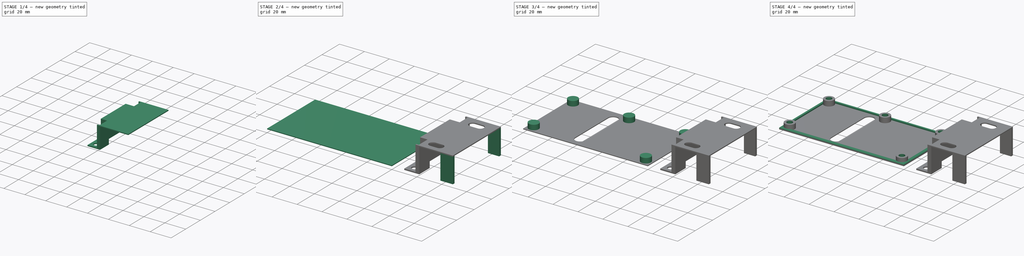
[diagram: build sequence overview — one tinted view per stage of 4, left to right]
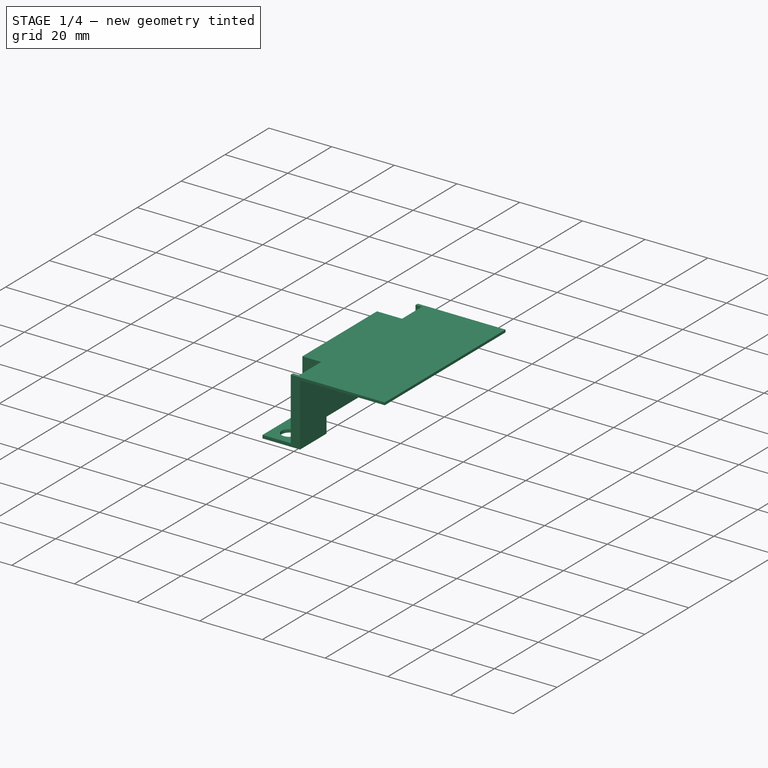
[diagram: stage 1 of 4 — iso view after this stage's code; geometry added in this stage tinted green]
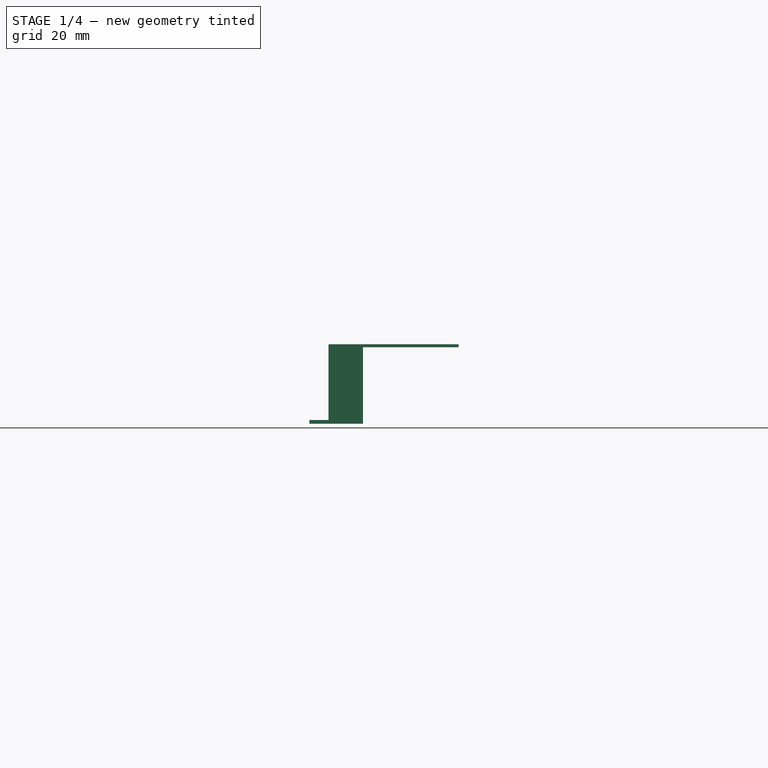
[diagram: stage 1 of 4 — front view after this stage's code; geometry added in this stage tinted green]
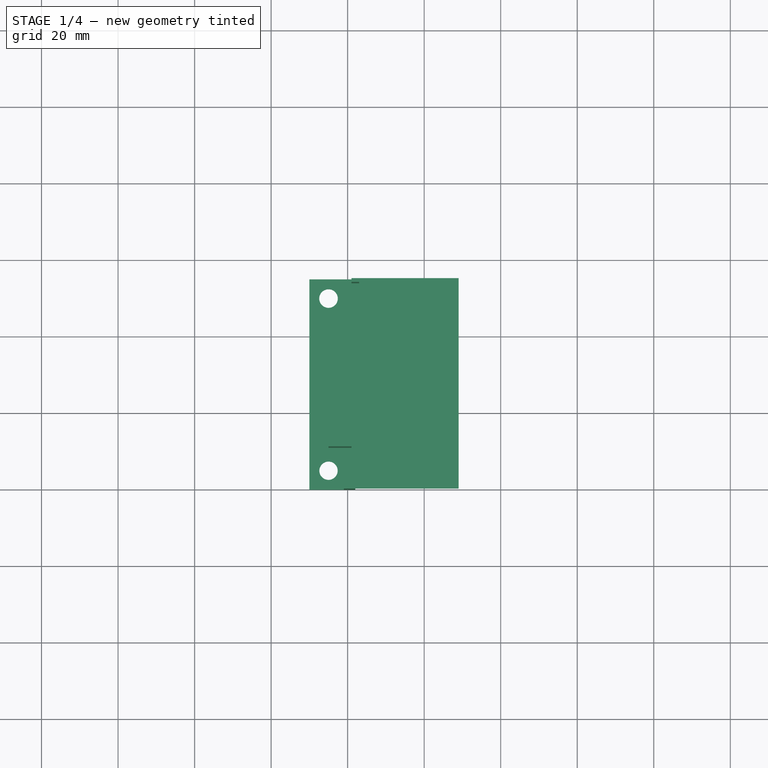
[diagram: stage 1 of 4 — top view after this stage's code; geometry added in this stage tinted green]
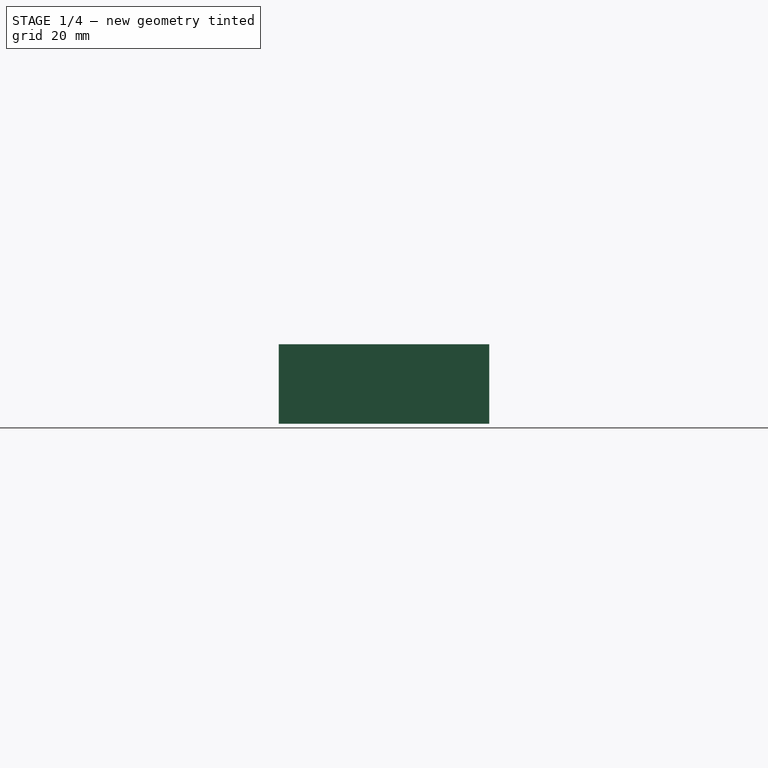
[diagram: stage 1 of 4 — right view after this stage's code; geometry added in this stage tinted green]
FCSTD DOCUMENT  (FreeCAD 0.18R4 (GitTag))
Label: HV Insulation
License: All rights reserved
LicenseURL: http://en.wikipedia.org/wiki/All_rights_reserved
objects: Sketcher::SketchObject×10, PartDesign::Pad×7, PartDesign::Pocket×2, PartDesign::Body×2, PartDesign::Fillet×1, PartDesign::Hole×1
note: 33 computed .brp shape members not serialized (recipe doc carries the construction recipe); baked Part::Feature solids carry a one-line shape summary decoded from their .brp

FEATURE [PartDesign::Body] Body  label="Insulator"
  Group = -> [Sketch,Pad,Sketch001,Pad001,Sketch002,Pocket,Sketch003,Pad002,Fillet,Sketch004,Hole]
  Origin = -> Origin
  Tip = -> Hole
FEATURE [Sketcher::SketchObject] Sketch005
  MapMode = 5
  Support = -> [XY_Plane001]
  sketch-geometry (10):
    g0: LineSegment StartX=110 StartY=55 StartZ=0 EndX=110 EndY=0 EndZ=0
    g1: LineSegment StartX=110 StartY=0 StartZ=0 EndX=122 EndY=0 EndZ=0
    g2: LineSegment StartX=122 StartY=0 StartZ=0 EndX=122 EndY=12 EndZ=0
    g3: LineSegment StartX=122 StartY=12 StartZ=0 EndX=116 EndY=12 EndZ=0
    g4: LineSegment StartX=116 StartY=12 StartZ=0 EndX=116 EndY=44 EndZ=0
    g5: LineSegment StartX=116 StartY=44 StartZ=0 EndX=124 EndY=44 EndZ=0
    g6: LineSegment StartX=110 StartY=55 StartZ=0 EndX=124 EndY=55 EndZ=0
    g7: LineSegment StartX=124 StartY=55 StartZ=0 EndX=124 EndY=44 EndZ=0
    g8: Circle CenterX=115 CenterY=50 CenterZ=0 NormalX=0 NormalY=0 NormalZ=1 AngleXU=0 Radius=2.42766
    g9: Circle CenterX=115 CenterY=5 CenterZ=0 NormalX=0 NormalY=0 NormalZ=1 AngleXU=0 Radius=2.39307
  constraints (17):
    c: PointOnObject(g0,g-1)
    c: Vertical(g0)
    c: Coincident(g0,g1)
    c: PointOnObject(g1,g-1)
    c: Coincident(g1,g2)
    c: Vertical(g2)
    c: Coincident(g2,g3)
    c: Horizontal(g3)
    c: Coincident(g3,g4)
    c: Vertical(g4)
    c: Coincident(g4,g5)
    c: Horizontal(g5)
    c: Coincident(g0,g6)
    c: Horizontal(g6)
    c: Coincident(g7,g6)
    c: Coincident(g7,g5)
    c: Vertical(g7)
FEATURE [PartDesign::Pad] Pad003
  Length = 1
  Length2 = 100
  Profile = -> Sketch005
  Type = 0
FEATURE [Sketcher::SketchObject] Sketch006
  MapMode = 5
  Placement = pos=(0,0,1) rot=(0,0,1;0rad)
  Support = -> [Pad003]
  sketch-geometry (16):
    g0: LineSegment StartX=121 StartY=55 StartZ=0 EndX=121 EndY=54 EndZ=0
    g1: LineSegment StartX=121 StartY=54 StartZ=0 EndX=123 EndY=54 EndZ=0
    g2: LineSegment StartX=123 StartY=54 StartZ=0 EndX=123 EndY=45 EndZ=0
    g3: LineSegment StartX=123 StartY=45 StartZ=0 EndX=115 EndY=45 EndZ=0
    g4: LineSegment StartX=115 StartY=45 StartZ=0 EndX=115 EndY=11 EndZ=0
    g5: LineSegment StartX=115 StartY=11 StartZ=0 EndX=121 EndY=11 EndZ=0
    g6: LineSegment StartX=121 StartY=11 StartZ=0 EndX=121 EndY=1 EndZ=0
    g7: LineSegment StartX=121 StartY=1 StartZ=0 EndX=119 EndY=1 EndZ=0
    g8: LineSegment StartX=119 StartY=1 StartZ=0 EndX=119 EndY=0 EndZ=0
    g9: LineSegment StartX=119 StartY=0 StartZ=0 EndX=122 EndY=0 EndZ=0
    g10: LineSegment StartX=122 StartY=0 StartZ=0 EndX=122 EndY=12 EndZ=0
    g11: LineSegment StartX=122 StartY=12 StartZ=0 EndX=116 EndY=12 EndZ=0
    g12: LineSegment StartX=116 StartY=12 StartZ=0 EndX=116 EndY=44 EndZ=0
    g13: LineSegment StartX=116 StartY=44 StartZ=0 EndX=124 EndY=44 EndZ=0
    g14: LineSegment StartX=124 StartY=44 StartZ=0 EndX=124 EndY=55 EndZ=0
    g15: LineSegment StartX=124 StartY=55 StartZ=0 EndX=121 EndY=55 EndZ=0
  constraints (32):
    c: Vertical(g0)
    c: Coincident(g0,g1)
    c: Horizontal(g1)
    c: Coincident(g1,g2)
    c: Vertical(g2)
    c: Coincident(g2,g3)
    c: Horizontal(g3)
    c: Coincident(g3,g4)
    c: Vertical(g4)
    c: Coincident(g4,g5)
    c: Horizontal(g5)
    c: Coincident(g5,g6)
    c: Vertical(g6)
    c: Coincident(g6,g7)
    c: Horizontal(g7)
    c: Coincident(g7,g8)
    c: Vertical(g8)
    c: Coincident(g8,g9)
    c: Horizontal(g9)
    c: Coincident(g9,g10)
    c: Vertical(g10)
    c: Coincident(g10,g11)
    c: Horizontal(g11)
    c: Coincident(g11,g12)
    c: Vertical(g12)
    c: Coincident(g12,g13)
    c: Horizontal(g13)
    c: Coincident(g13,g14)
    c: Vertical(g14)
    c: Coincident(g14,g15)
    c: Coincident(g15,g0)
    c: Horizontal(g15)
FEATURE [PartDesign::Pad] Pad004
  BaseFeature = -> Pad003
  Length = 19
  Length2 = 100
  Profile = -> Sketch006
  Type = 0
FEATURE [Sketcher::SketchObject] Sketch007
  MapMode = 5
  Placement = pos=(0,0,20) rot=(0,0,1;0rad)
  Support = -> [Pad004]
  sketch-geometry (12):
    g0: LineSegment StartX=121 StartY=55 StartZ=0 EndX=121 EndY=54 EndZ=0
    g1: LineSegment StartX=121 StartY=54 StartZ=0 EndX=123 EndY=54 EndZ=0
    g2: LineSegment StartX=123 StartY=54 StartZ=0 EndX=123 EndY=45 EndZ=0
    g3: LineSegment StartX=123 StartY=45 StartZ=0 EndX=115 EndY=45 EndZ=0
    g4: LineSegment StartX=115 StartY=45 StartZ=0 EndX=115 EndY=11 EndZ=0
    g5: LineSegment StartX=115 StartY=11 StartZ=0 EndX=121 EndY=11 EndZ=0
    g6: LineSegment StartX=121 StartY=11 StartZ=0 EndX=121 EndY=1 EndZ=0
    g7: LineSegment StartX=121 StartY=1 StartZ=0 EndX=119 EndY=1 EndZ=0
    g8: LineSegment StartX=119 StartY=1 StartZ=0 EndX=119 EndY=0 EndZ=0
    g9: LineSegment StartX=119 StartY=0 StartZ=0 EndX=149 EndY=0 EndZ=0
    g10: LineSegment StartX=149 StartY=0 StartZ=0 EndX=149 EndY=55 EndZ=0
    g11: LineSegment StartX=149 StartY=55 StartZ=0 EndX=121 EndY=55 EndZ=0
  constraints (25):
    c: Vertical(g0)
    c: Coincident(g0,g1)
    c: Horizontal(g1)
    c: Coincident(g1,g2)
    c: Vertical(g2)
    c: Coincident(g2,g3)
    c: Horizontal(g3)
    c: Coincident(g3,g4)
    c: Vertical(g4)
    c: Coincident(g4,g5)
    c: Horizontal(g5)
    c: Coincident(g5,g6)
    c: Vertical(g6)
    c: Coincident(g6,g7)
    c: Horizontal(g7)
    c: Coincident(g7,g8)
    c: PointOnObject(g8,g-1)
    c: Vertical(g8)
    c: Coincident(g8,g9)
    c: Horizontal(g9)
    c: Coincident(g9,g10)
    c: Vertical(g10)
    c: Coincident(g10,g11)
    c: Coincident(g11,g0)
    c: Horizontal(g11)
FEATURE [PartDesign::Pad] Pad005
  BaseFeature = -> Pad004
  Length = 0.8
  Length2 = 100
  Profile = -> Sketch007
  Type = 0
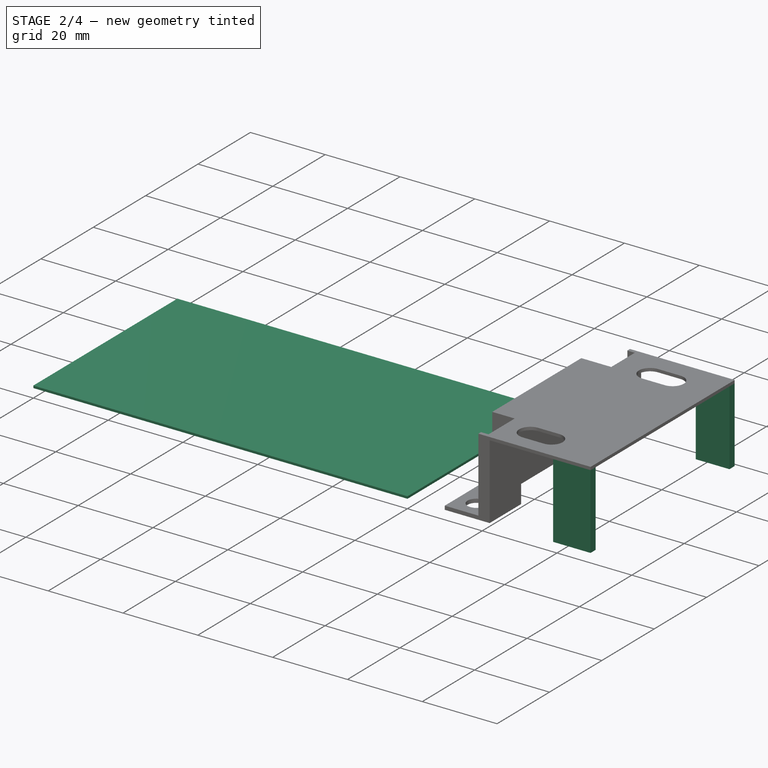
[diagram: stage 2 of 4 — iso view after this stage's code; geometry added in this stage tinted green]
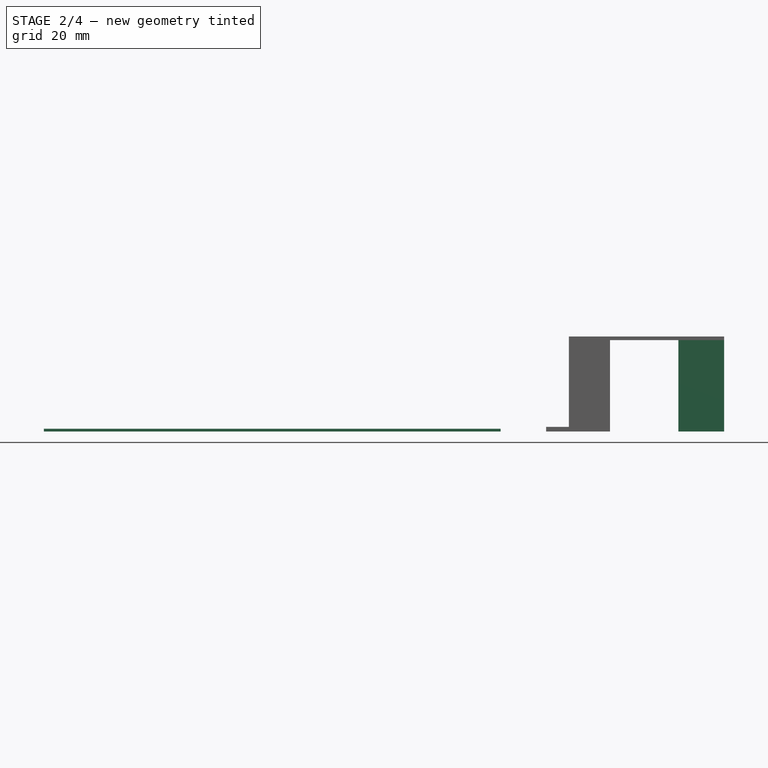
[diagram: stage 2 of 4 — front view after this stage's code; geometry added in this stage tinted green]
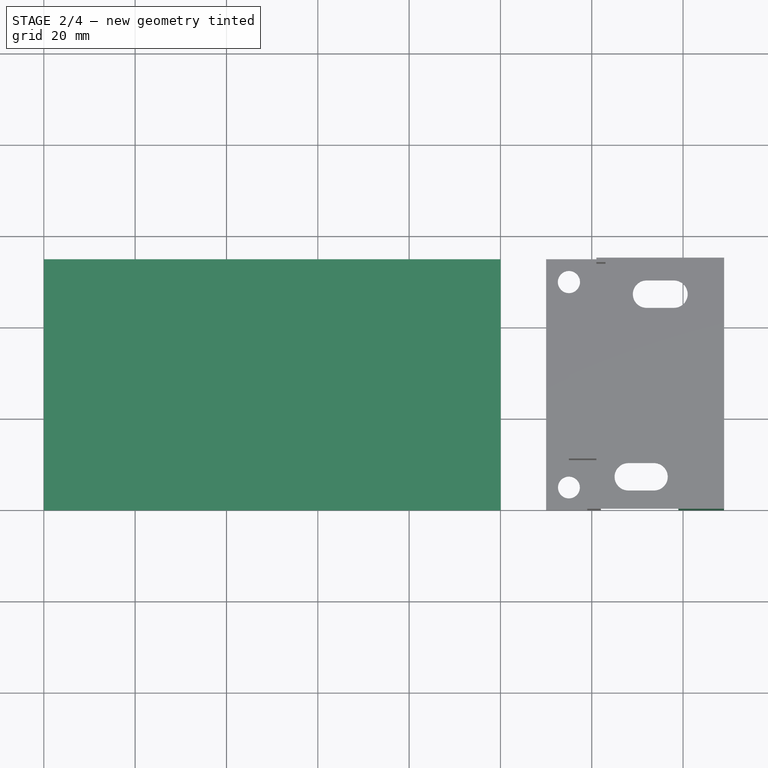
[diagram: stage 2 of 4 — top view after this stage's code; geometry added in this stage tinted green]
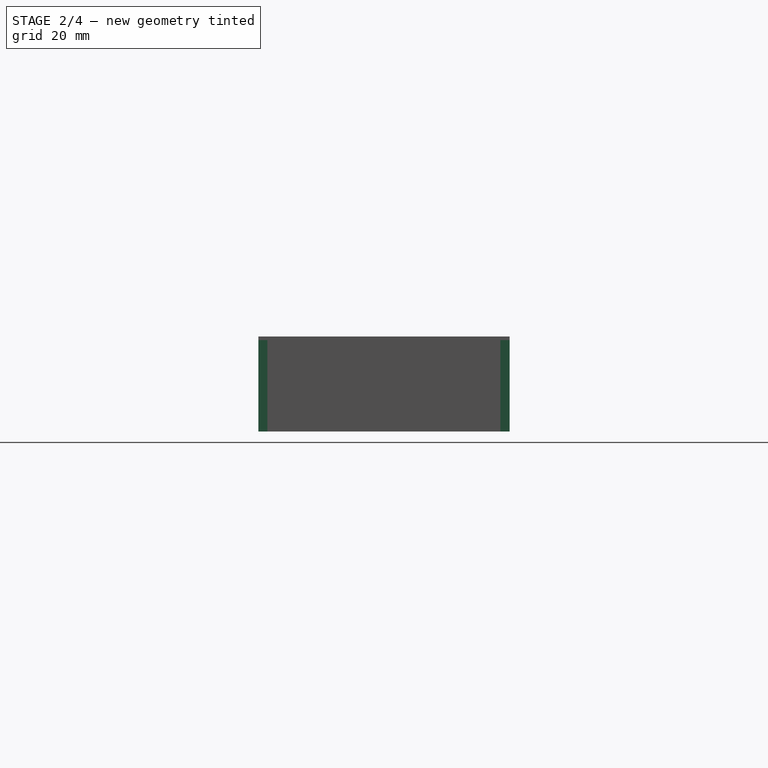
[diagram: stage 2 of 4 — right view after this stage's code; geometry added in this stage tinted green]
FEATURE [Sketcher::SketchObject] Sketch
  MapMode = 5
  Support = -> [XY_Plane]
  sketch-geometry (4):
    g0: LineSegment StartX=0 StartY=0 StartZ=0 EndX=100.042 EndY=0 EndZ=0
    g1: LineSegment StartX=100.042 StartY=0 StartZ=0 EndX=100.042 EndY=55 EndZ=0
    g2: LineSegment StartX=100.042 StartY=55 StartZ=0 EndX=0 EndY=55 EndZ=0
    g3: LineSegment StartX=0 StartY=55 StartZ=0 EndX=0 EndY=0 EndZ=0
  constraints (9):
    c: Coincident(g0,g1)
    c: Coincident(g1,g2)
    c: Coincident(g2,g3)
    c: Coincident(g3,g0)
    c: Horizontal(g0)
    c: Horizontal(g2)
    c: Vertical(g1)
    c: Vertical(g3)
    c: Coincident(g0,g-1)
FEATURE [PartDesign::Pad] Pad
  Length = 0.6
  Length2 = 100
  Profile = -> Sketch
  Type = 0
FEATURE [Sketcher::SketchObject] Sketch008
  MapMode = 5
  Placement = pos=(0,0,20) rot=(1,0,0;3.14159rad)
  Support = -> [Pad005]
  sketch-geometry (8):
    g0: LineSegment StartX=138.972 StartY=0 StartZ=0 EndX=148.972 EndY=0 EndZ=0
    g1: LineSegment StartX=148.972 StartY=0 StartZ=0 EndX=148.972 EndY=-1.95523 EndZ=0
    g2: LineSegment StartX=148.972 StartY=-1.95523 StartZ=0 EndX=138.972 EndY=-1.95523 EndZ=0
    g3: LineSegment StartX=138.972 StartY=-1.95523 StartZ=0 EndX=138.972 EndY=0 EndZ=0
    g4: LineSegment StartX=149 StartY=-55 StartZ=0 EndX=140 EndY=-55 EndZ=0
    g5: LineSegment StartX=140 StartY=-55 StartZ=0 EndX=140 EndY=-53 EndZ=0
    g6: LineSegment StartX=140 StartY=-53 StartZ=0 EndX=149 EndY=-53 EndZ=0
    g7: LineSegment StartX=149 StartY=-53 StartZ=0 EndX=149 EndY=-55 EndZ=0
  constraints (17):
    c: Coincident(g0,g1)
    c: Coincident(g1,g2)
    c: Coincident(g2,g3)
    c: Coincident(g3,g0)
    c: Horizontal(g0)
    c: Horizontal(g2)
    c: Vertical(g1)
    c: Vertical(g3)
    c: PointOnObject(g0,g-1)
    c: Coincident(g4,g5)
    c: Coincident(g5,g6)
    c: Coincident(g6,g7)
    c: Coincident(g7,g4)
    c: Horizontal(g4)
    c: Horizontal(g6)
    c: Vertical(g5)
    c: Vertical(g7)
FEATURE [PartDesign::Pad] Pad006
  BaseFeature = -> Pad005
  Length = 20
  Length2 = 100
  Profile = -> Sketch008
  Type = 0
FEATURE [Sketcher::SketchObject] Sketch009
  MapMode = 5
  Placement = pos=(0,0,20.8) rot=(0,0,1;0rad)
  Support = -> [Pad006]
  sketch-geometry (8):
    g0: ArcOfCircle CenterX=132 CenterY=47 CenterZ=0 NormalX=0 NormalY=0 NormalZ=1 AngleXU=0 Radius=3 StartAngle=1.5708 EndAngle=4.71239
    g1: ArcOfCircle CenterX=138 CenterY=47 CenterZ=0 NormalX=0 NormalY=0 NormalZ=1 AngleXU=0 Radius=3 StartAngle=4.71239 EndAngle=7.85398
    g2: LineSegment StartX=132 StartY=44 StartZ=0 EndX=138 EndY=44 EndZ=0
    g3: LineSegment StartX=132 StartY=50 StartZ=0 EndX=138 EndY=50 EndZ=0
    g4: ArcOfCircle CenterX=128 CenterY=7 CenterZ=0 NormalX=0 NormalY=0 NormalZ=1 AngleXU=0 Radius=3 StartAngle=1.5708 EndAngle=4.71239
    g5: ArcOfCircle CenterX=133.637 CenterY=7 CenterZ=0 NormalX=0 NormalY=0 NormalZ=1 AngleXU=0 Radius=3 StartAngle=4.71239 EndAngle=7.85398
    g6: LineSegment StartX=128 StartY=4 StartZ=0 EndX=133.637 EndY=4 EndZ=0
    g7: LineSegment StartX=128 StartY=10 StartZ=0 EndX=133.637 EndY=10 EndZ=0
  constraints (12):
    c: Tangent(g0,g3) = 1.5708
    c: Tangent(g0,g2) = -1.5708
    c: Tangent(g2,g1) = -1.5708
    c: Tangent(g3,g1) = 1.5708
    c: Horizontal(g2)
    c: Equal(g0,g1)
    c: Tangent(g4,g7) = 1.5708
    c: Tangent(g4,g6) = -1.5708
    c: Tangent(g6,g5) = -1.5708
    c: Tangent(g7,g5) = 1.5708
    c: Horizontal(g6)
    c: Equal(g4,g5)
FEATURE [PartDesign::Pocket] Pocket001
  BaseFeature = -> Pad006
  Length = 5
  Length2 = 100
  Profile = -> Sketch009
  Type = 0
FEATURE [PartDesign::Body] Body001
  Group = -> [Sketch005,Pad003,Sketch006,Pad004,Sketch007,Pad005,Sketch008,Pad006,Sketch009,Pocket001]
  Origin = -> Origin001
  Tip = -> Pocket001
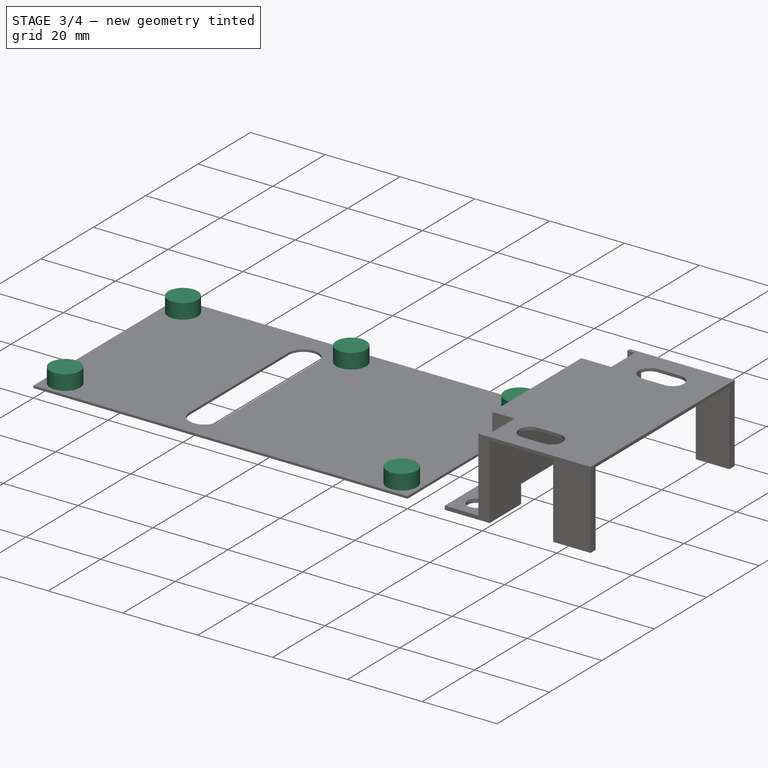
[diagram: stage 3 of 4 — iso view after this stage's code; geometry added in this stage tinted green]
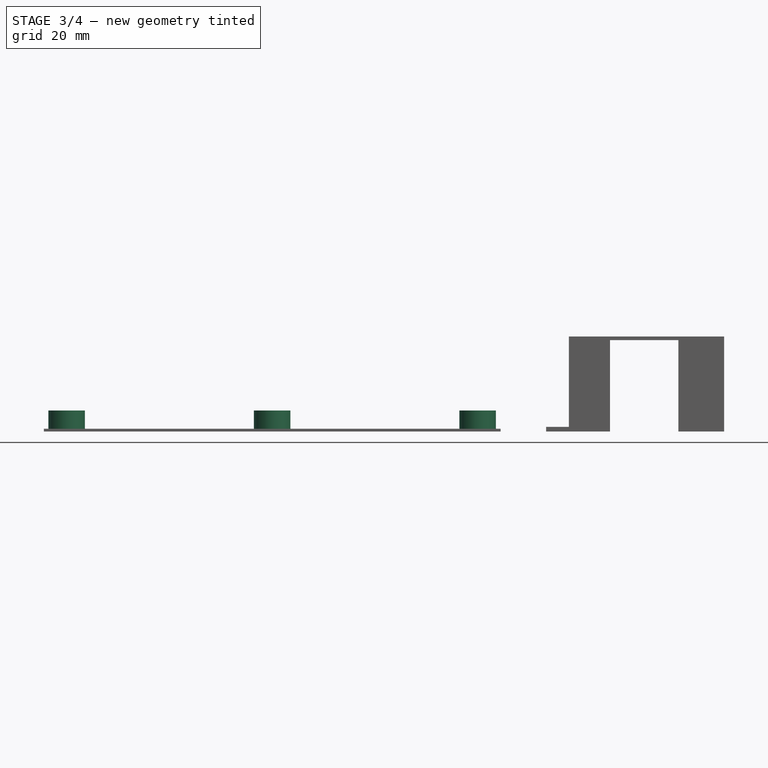
[diagram: stage 3 of 4 — front view after this stage's code; geometry added in this stage tinted green]
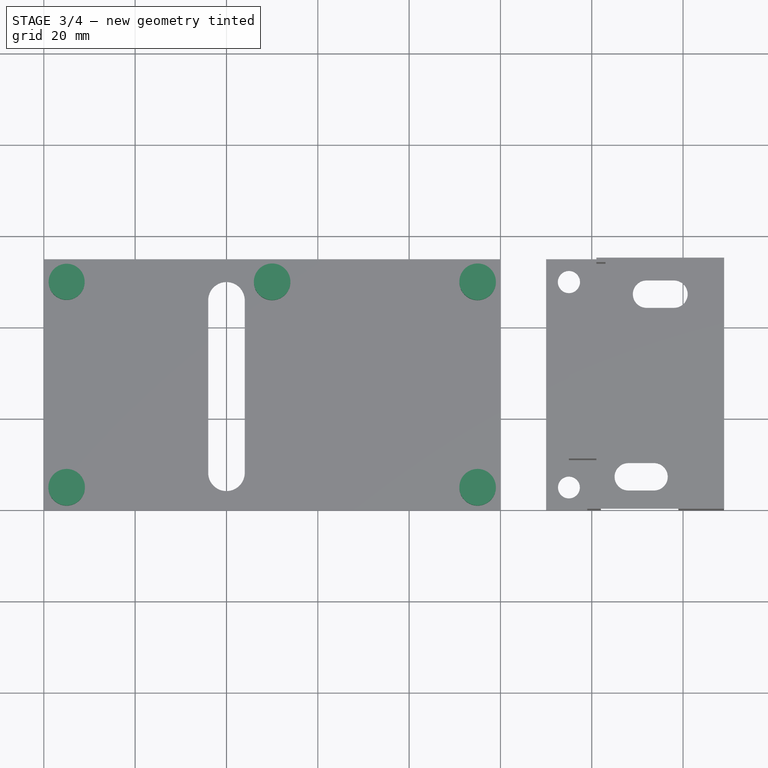
[diagram: stage 3 of 4 — top view after this stage's code; geometry added in this stage tinted green]
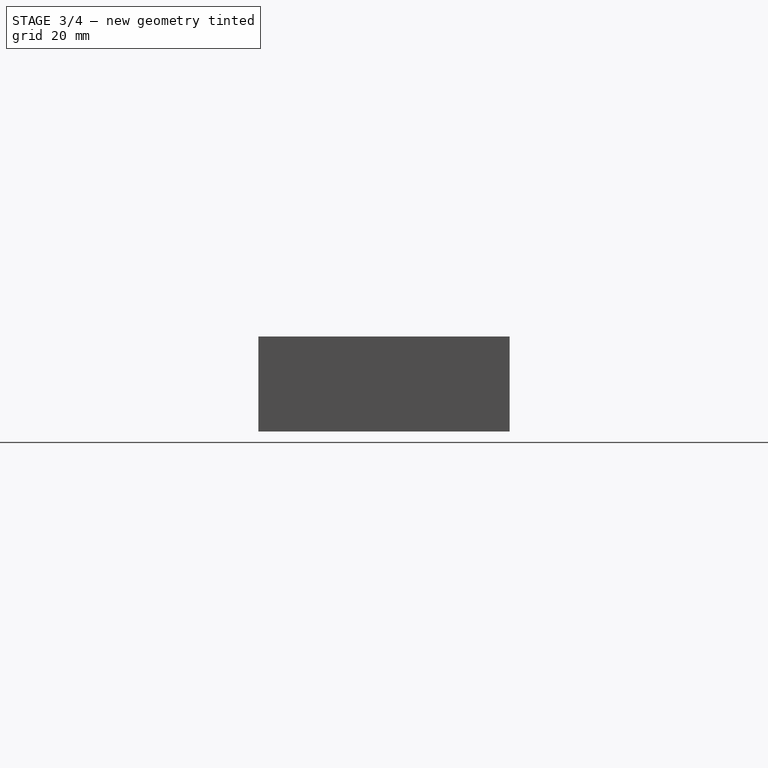
[diagram: stage 3 of 4 — right view after this stage's code; geometry added in this stage tinted green]
FEATURE [Sketcher::SketchObject] Sketch001
  MapMode = 5
  Placement = pos=(0,0,0.6) rot=(0,0,1;0rad)
  Support = -> [Pad]
  sketch-geometry (5):
    g0: Circle CenterX=5 CenterY=50 CenterZ=0 NormalX=0 NormalY=0 NormalZ=1 AngleXU=0 Radius=3.94116
    g1: Circle CenterX=95 CenterY=50 CenterZ=0 NormalX=0 NormalY=0 NormalZ=1 AngleXU=0 Radius=4
    g2: Circle CenterX=5 CenterY=5 CenterZ=0 NormalX=0 NormalY=0 NormalZ=1 AngleXU=0 Radius=4
    g3: Circle CenterX=95 CenterY=5 CenterZ=0 NormalX=0 NormalY=0 NormalZ=1 AngleXU=0 Radius=4
    g4: Circle CenterX=50 CenterY=50 CenterZ=0 NormalX=0 NormalY=0 NormalZ=1 AngleXU=0 Radius=4
FEATURE [PartDesign::Pad] Pad001
  BaseFeature = -> Pad
  Length = 4
  Length2 = 100
  Profile = -> Sketch001
  Type = 0
FEATURE [Sketcher::SketchObject] Sketch002
  MapMode = 5
  Placement = pos=(0,0,0.6) rot=(0,0,1;0rad)
  Support = -> [Pad001]
  sketch-geometry (4):
    g0: ArcOfCircle CenterX=40 CenterY=46 CenterZ=0 NormalX=0 NormalY=0 NormalZ=1 AngleXU=0 Radius=4 StartAngle=1e-16 EndAngle=3.14159
    g1: ArcOfCircle CenterX=40 CenterY=8.2219 CenterZ=0 NormalX=0 NormalY=0 NormalZ=1 AngleXU=0 Radius=4 StartAngle=3.14159 EndAngle=6.28319
    g2: LineSegment StartX=36 StartY=46 StartZ=0 EndX=36 EndY=8.2219 EndZ=0
    g3: LineSegment StartX=44 StartY=46 StartZ=0 EndX=44 EndY=8.2219 EndZ=0
  constraints (6):
    c: Tangent(g0,g3) = 1.5708
    c: Tangent(g0,g2) = -1.5708
    c: Tangent(g2,g1) = -1.5708
    c: Tangent(g3,g1) = 1.5708
    c: Vertical(g2)
    c: Equal(g0,g1)
FEATURE [PartDesign::Pocket] Pocket
  BaseFeature = -> Pad001
  Length = 5
  Length2 = 100
  Profile = -> Sketch002
  Type = 0
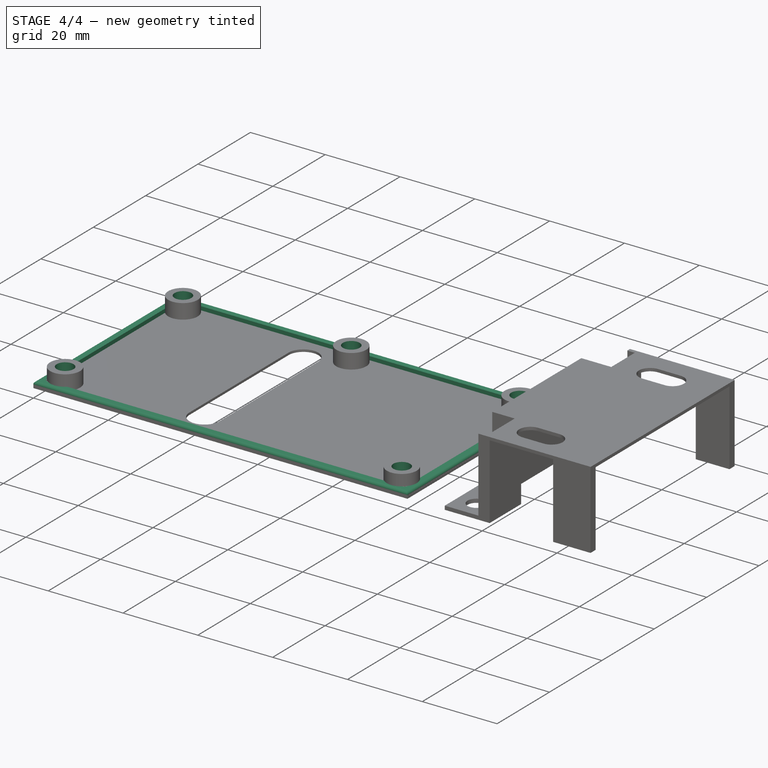
[diagram: stage 4 of 4 — iso view after this stage's code; geometry added in this stage tinted green]
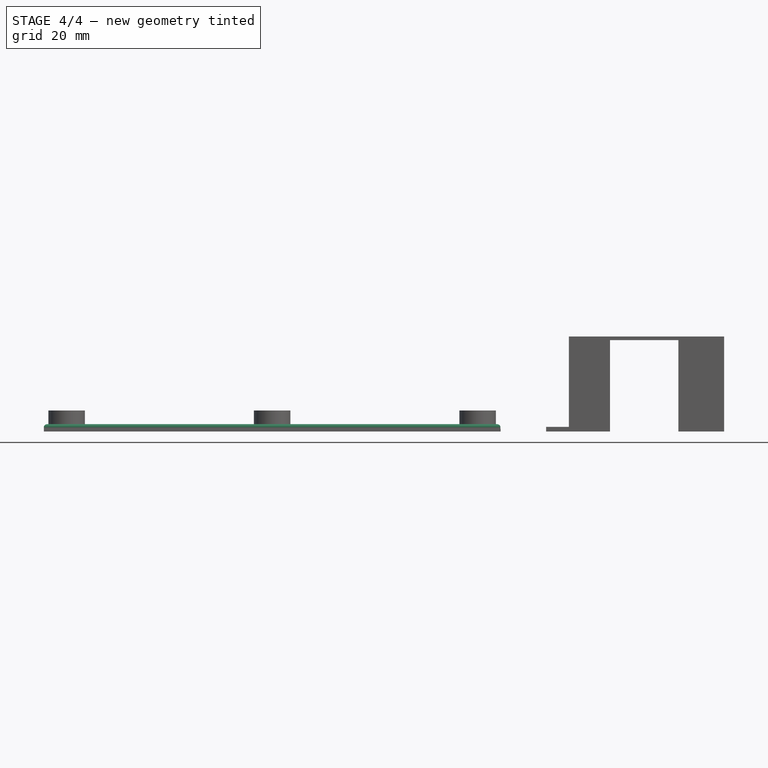
[diagram: stage 4 of 4 — front view after this stage's code; geometry added in this stage tinted green]
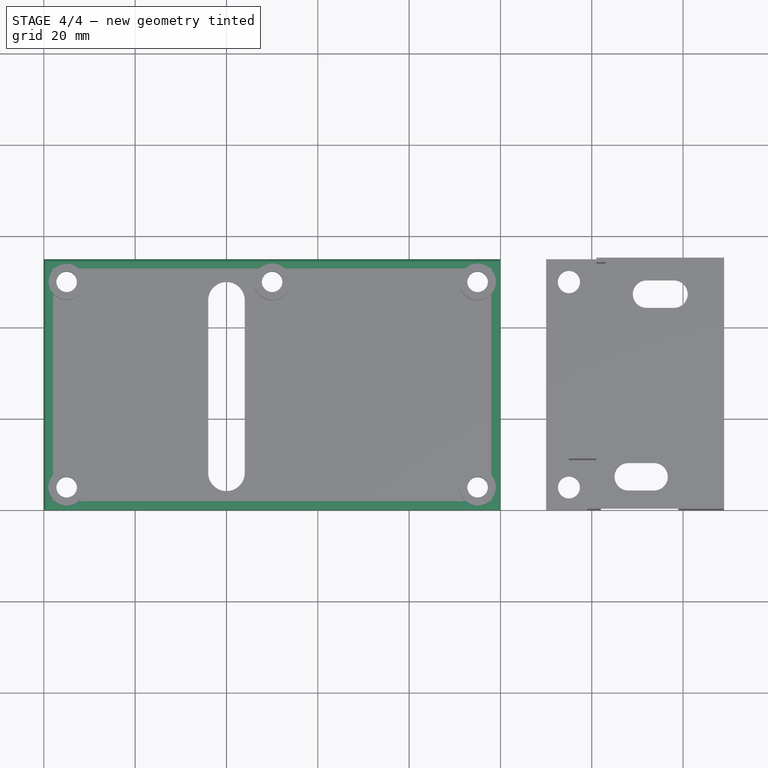
[diagram: stage 4 of 4 — top view after this stage's code; geometry added in this stage tinted green]
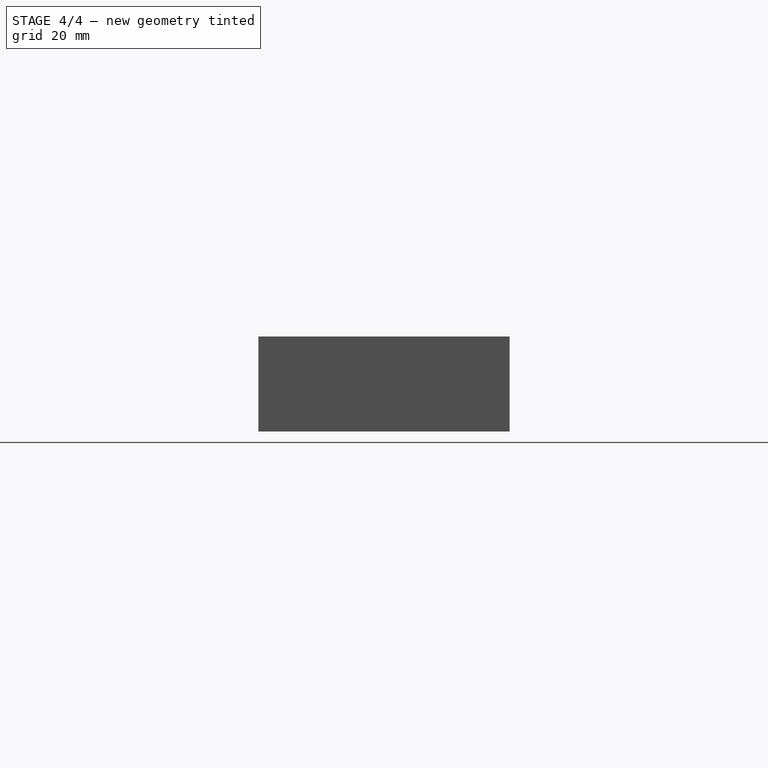
[diagram: stage 4 of 4 — right view after this stage's code; geometry added in this stage tinted green]
FEATURE [Sketcher::SketchObject] Sketch003
  MapMode = 5
  Placement = pos=(0,0,0.6) rot=(0,0,1;0rad)
  Support = -> [Pocket]
  sketch-geometry (8):
    g0: LineSegment StartX=0 StartY=55 StartZ=0 EndX=100 EndY=55 EndZ=0
    g1: LineSegment StartX=100 StartY=55 StartZ=0 EndX=100 EndY=0 EndZ=0
    g2: LineSegment StartX=100 StartY=0 StartZ=0 EndX=0 EndY=0 EndZ=0
    g3: LineSegment StartX=0 StartY=0 StartZ=0 EndX=0 EndY=55 EndZ=0
    g4: LineSegment StartX=98 StartY=2 StartZ=0 EndX=2 EndY=2 EndZ=0
    g5: LineSegment StartX=2 StartY=2 StartZ=0 EndX=2 EndY=53 EndZ=0
    g6: LineSegment StartX=2 StartY=53 StartZ=0 EndX=98 EndY=53 EndZ=0
    g7: LineSegment StartX=98 StartY=53 StartZ=0 EndX=98 EndY=2 EndZ=0
  constraints (18):
    c: Coincident(g0,g1)
    c: Coincident(g1,g2)
    c: Coincident(g2,g3)
    c: Coincident(g3,g0)
    c: Horizontal(g0)
    c: Horizontal(g2)
    c: Vertical(g1)
    c: Vertical(g3)
    c: PointOnObject(g0,g-2)
    c: PointOnObject(g1,g-1)
    c: Coincident(g4,g5)
    c: Coincident(g5,g6)
    c: Coincident(g6,g7)
    c: Coincident(g7,g4)
    c: Horizontal(g4)
    c: Horizontal(g6)
    c: Vertical(g5)
    c: Vertical(g7)
FEATURE [PartDesign::Pad] Pad002
  BaseFeature = -> Pocket
  Length = 1
  Length2 = 100
  Profile = -> Sketch003
  Type = 0
FEATURE [PartDesign::Fillet] Fillet
  Base = -> Pad002 [Edge35,Edge24,Edge19,Edge34]
  BaseFeature = -> Pad002
  Radius = 0.7
FEATURE [Sketcher::SketchObject] Sketch004
  MapMode = 5
  Placement = pos=(0,0,4.6) rot=(0,0,1;0rad)
  Support = -> [Fillet]
  sketch-geometry (5):
    g0: Circle CenterX=5 CenterY=50 CenterZ=0 NormalX=0 NormalY=0 NormalZ=1 AngleXU=0 Radius=2
    g1: Circle CenterX=50 CenterY=50 CenterZ=0 NormalX=0 NormalY=0 NormalZ=1 AngleXU=0 Radius=2
    g2: Circle CenterX=5 CenterY=5 CenterZ=0 NormalX=0 NormalY=0 NormalZ=1 AngleXU=0 Radius=2.01023
    g3: Circle CenterX=95 CenterY=50 CenterZ=0 NormalX=0 NormalY=0 NormalZ=1 AngleXU=0 Radius=2
    g4: Circle CenterX=95 CenterY=5 CenterZ=0 NormalX=0 NormalY=0 NormalZ=1 AngleXU=0 Radius=2
FEATURE [PartDesign::Hole] Hole
  BaseFeature = -> Fillet
  Depth = 25
  DepthType = 0
  Diameter = 4.5
  DrillPoint = 1
  DrillPointAngle = 118
  HoleCutCountersinkAngle = 90
  HoleCutDepth = 0
  HoleCutDiameter = 0
  HoleCutType = 0
  ModelActualThread = false
  Profile = -> Sketch004
  Tapered = false
  TaperedAngle = 90
  ThreadAngle = 0
  ThreadClass = 0
  ThreadCutOffInner = 0
  ThreadCutOffOuter = 0
  ThreadDirection = 0
  ThreadFit = 0
  ThreadPitch = 0
  ThreadSize = 0
  ThreadType = 0
  Threaded = false
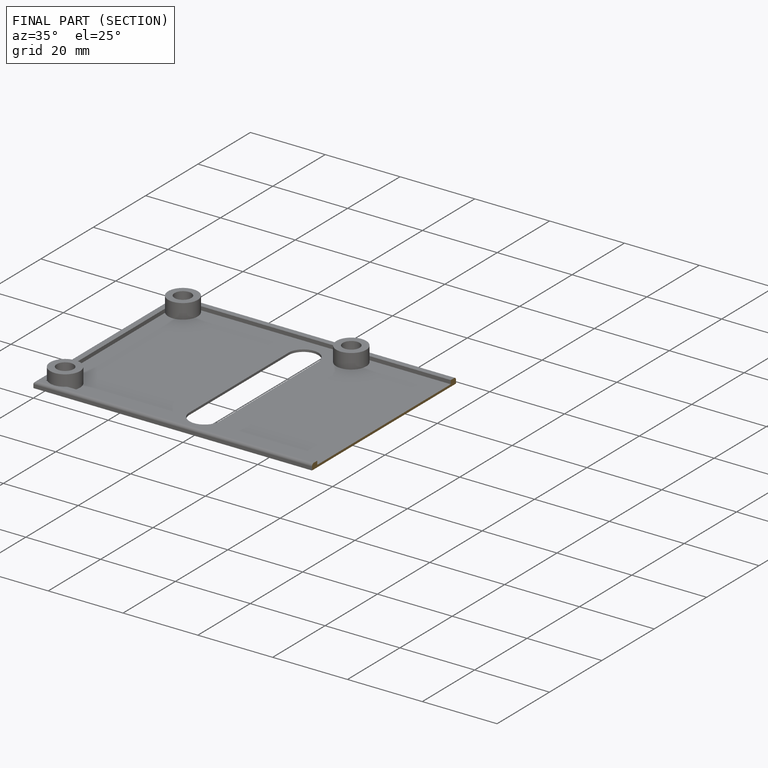
[diagram: finished part — half-section view (interior)]
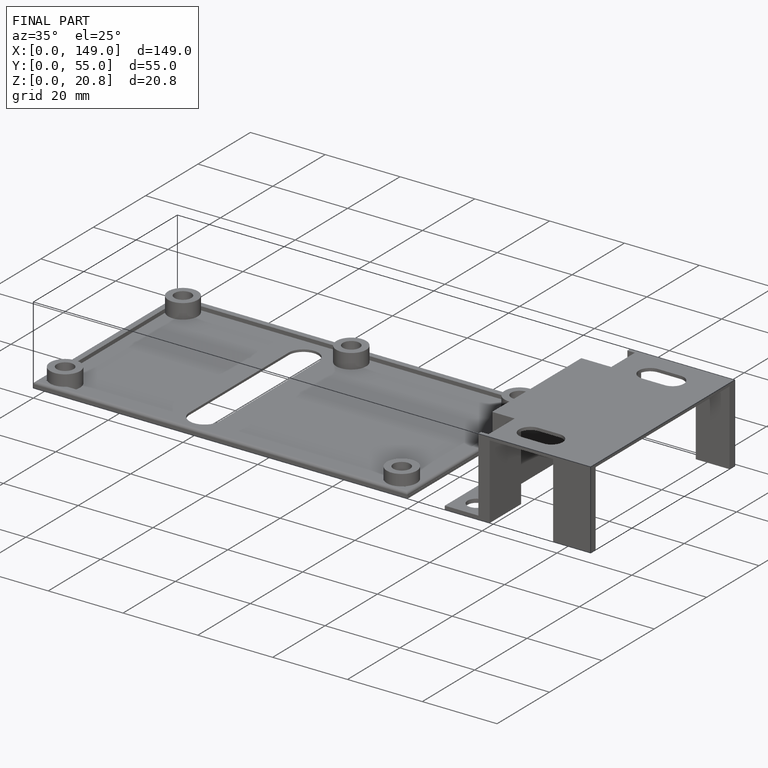
[diagram: finished part — iso view with bounding-box wireframe]
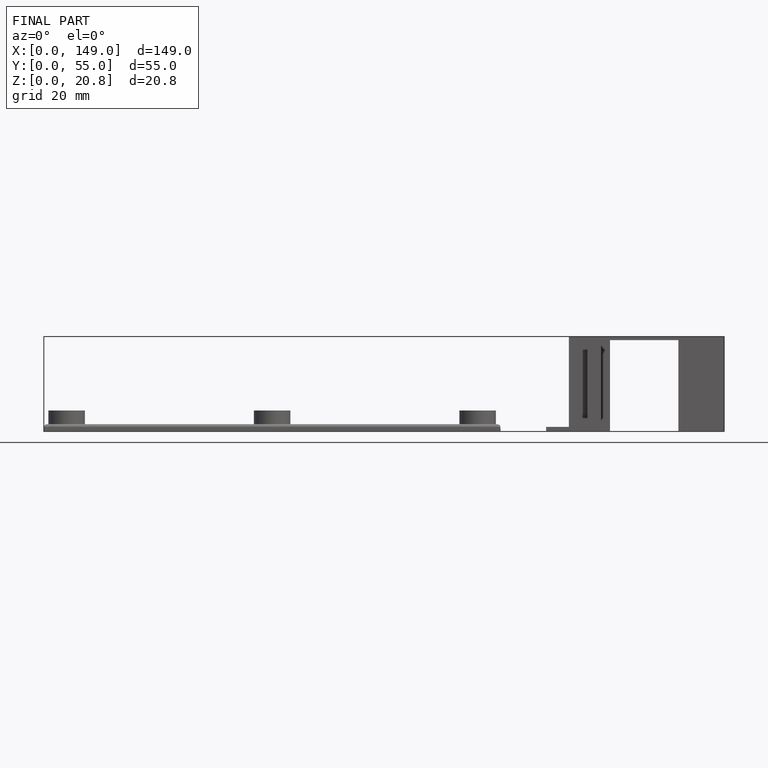
[diagram: finished part — front view with bounding-box wireframe]
